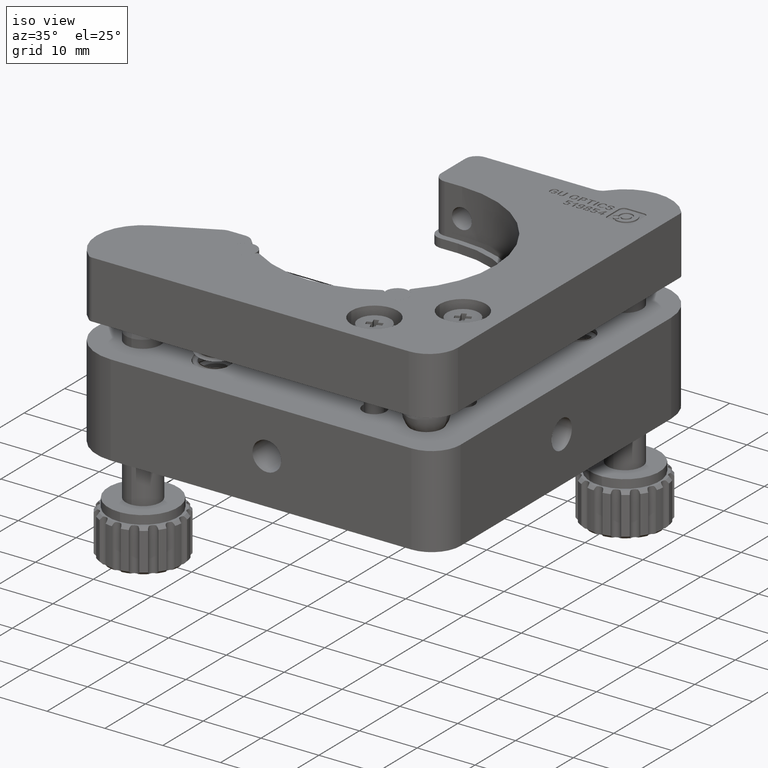
[diagram: clean part render]
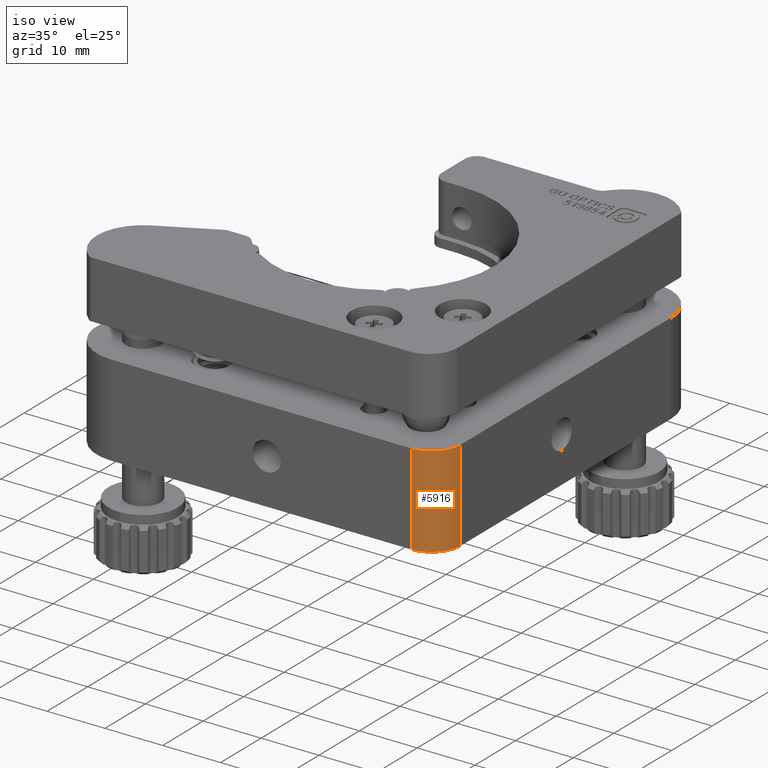
[diagram: same view with one face highlighted and labeled with its STEP entity id]
A machine part, iso view. The second image highlights one B-rep face of the part: STEP entity #5916.
In plain terms, the highlighted cylindrical surface (edge-blend (fillet) strip) has radius 5 mm, axis along (0, 0, -1).
Its self-contained STEP definition (entity closure, byte-faithful):
#1774 = CARTESIAN_POINT ( 'NONE',  ( 0.0000000000000000000, 5.000000000000036400, 15.80000000000000100 ) ) ;
#1900 = DIRECTION ( 'NONE',  ( -1.000000000000000000, 0.0000000000000000000, 0.0000000000000000000 ) ) ;
#1952 = DIRECTION ( 'NONE',  ( -0.0000000000000000000, -0.0000000000000000000, 1.000000000000000000 ) ) ;
#1982 = CARTESIAN_POINT ( 'NONE',  ( -5.000000000000000000, 5.000000000000000000, 0.0000000000000000000 ) ) ;
#2619 = DIRECTION ( 'NONE',  ( -0.0000000000000000000, -0.0000000000000000000, 1.000000000000000000 ) ) ;
#3826 = VECTOR ( 'NONE', #35577, 1000.000000000000000 ) ;
#4516 = CIRCLE ( 'NONE', #11363, 5.000000000000000000 ) ;
#5183 = ORIENTED_EDGE ( 'NONE', *, *, #16905, .F. ) ;
#5916 = ADVANCED_FACE ( 'NONE', ( #7557 ), #11501, .T. ) ;
#6638 = ORIENTED_EDGE ( 'NONE', *, *, #34533, .F. ) ;
#7557 = FACE_OUTER_BOUND ( 'NONE', #26217, .T. ) ;
#11363 = AXIS2_PLACEMENT_3D ( 'NONE', #1982, #1952, #1900 ) ;
#11501 = CYLINDRICAL_SURFACE ( 'NONE', #15817, 5.000000000000000000 ) ;
#13041 = CARTESIAN_POINT ( 'NONE',  ( -5.000000000000035500, -2.423125302088720000E-016, 15.80000000000000100 ) ) ;
#13177 = EDGE_CURVE ( 'NONE', #20240, #31101, #4516, .T. ) ;
#15817 = AXIS2_PLACEMENT_3D ( 'NONE', #26068, #25375, #27067 ) ;
#16606 = CARTESIAN_POINT ( 'NONE',  ( 0.0000000000000000000, 5.000000000000036400, 0.0000000000000000000 ) ) ;
#16905 = EDGE_CURVE ( 'NONE', #22941, #31048, #36646, .T. ) ;
#19088 = CARTESIAN_POINT ( 'NONE',  ( 0.0000000000000000000, 5.000000000000036400, 15.80000000000000100 ) ) ;
#19598 = CARTESIAN_POINT ( 'NONE',  ( -5.000000000000000000, 5.000000000000000000, 15.80000000000000100 ) ) ;
#20240 = VERTEX_POINT ( 'NONE', #28917 ) ;
#21312 = EDGE_CURVE ( 'NONE', #22941, #20240, #33881, .T. ) ;
#21617 = DIRECTION ( 'NONE',  ( 0.0000000000000000000, 0.0000000000000000000, -1.000000000000000000 ) ) ;
#22454 = DIRECTION ( 'NONE',  ( -1.000000000000000000, 0.0000000000000000000, 0.0000000000000000000 ) ) ;
#22941 = VERTEX_POINT ( 'NONE', #24115 ) ;
#23119 = AXIS2_PLACEMENT_3D ( 'NONE', #19598, #2619, #22454 ) ;
#24115 = CARTESIAN_POINT ( 'NONE',  ( -5.000000000000035500, -2.423125302088720000E-016, 15.80000000000000100 ) ) ;
#24153 = ORIENTED_EDGE ( 'NONE', *, *, #21312, .T. ) ;
#24209 = LINE ( 'NONE', #1774, #30811 ) ;
#25375 = DIRECTION ( 'NONE',  ( 0.0000000000000000000, 0.0000000000000000000, -1.000000000000000000 ) ) ;
#26068 = CARTESIAN_POINT ( 'NONE',  ( -5.000000000000000000, 5.000000000000000000, 15.80000000000000100 ) ) ;
#26217 = EDGE_LOOP ( 'NONE', ( #29774, #6638, #5183, #24153 ) ) ;
#27067 = DIRECTION ( 'NONE',  ( 1.000000000000000000, 0.0000000000000000000, 0.0000000000000000000 ) ) ;
#28917 = CARTESIAN_POINT ( 'NONE',  ( -5.000000000000035500, -2.423125302088720000E-016, -0.0000000000000000000 ) ) ;
#29774 = ORIENTED_EDGE ( 'NONE', *, *, #13177, .T. ) ;
#30811 = VECTOR ( 'NONE', #21617, 1000.000000000000000 ) ;
#31048 = VERTEX_POINT ( 'NONE', #19088 ) ;
#31101 = VERTEX_POINT ( 'NONE', #16606 ) ;
#33881 = LINE ( 'NONE', #13041, #3826 ) ;
#34533 = EDGE_CURVE ( 'NONE', #31048, #31101, #24209, .T. ) ;
#35577 = DIRECTION ( 'NONE',  ( 0.0000000000000000000, 0.0000000000000000000, -1.000000000000000000 ) ) ;
#36646 = CIRCLE ( 'NONE', #23119, 5.000000000000000000 ) ;